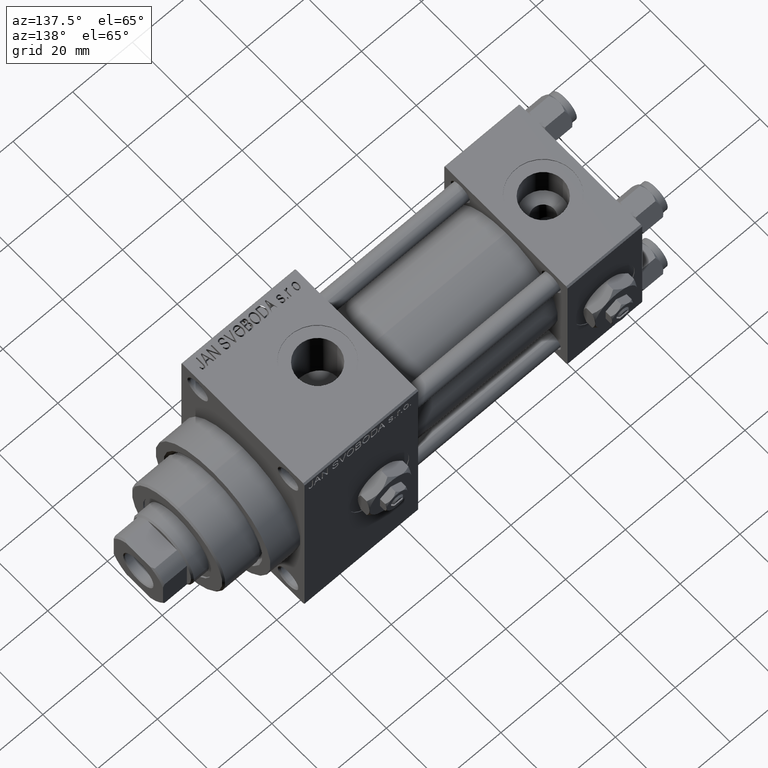
[diagram: clean part render]
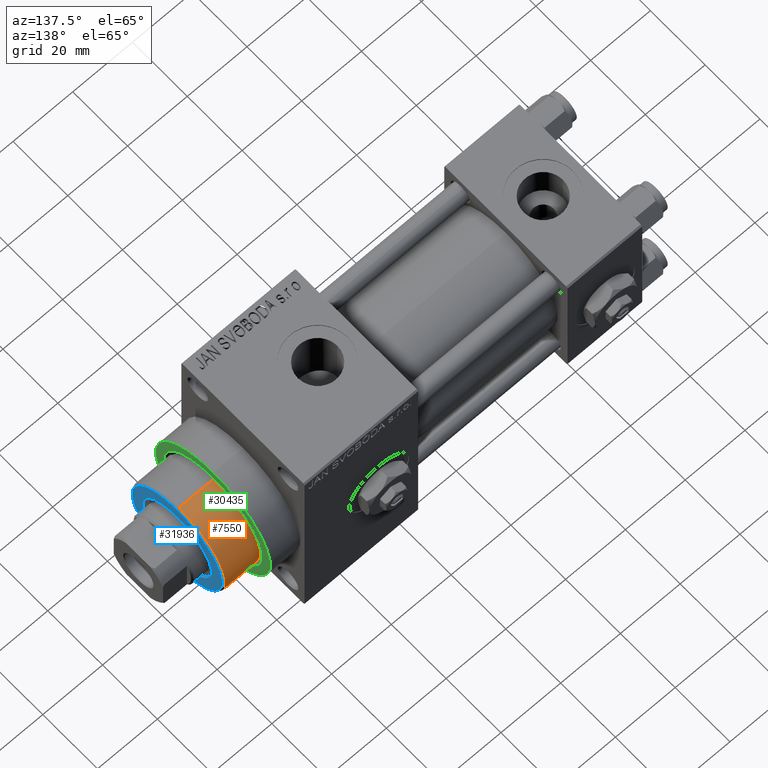
[diagram: same view with three faces highlighted in distinct colors, each labeled with its STEP entity id]
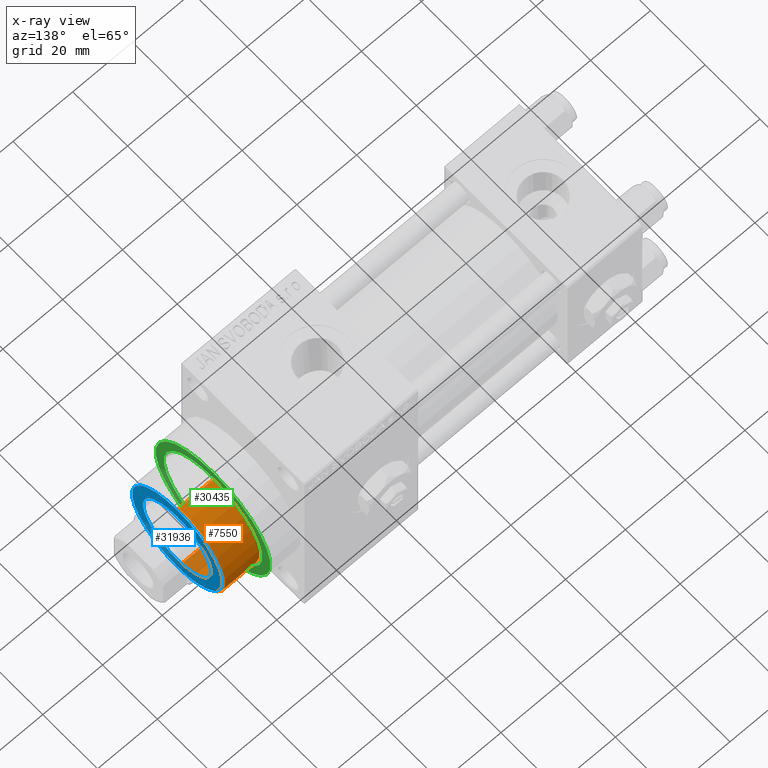
[diagram: x-ray of the same camera — body ghosted, the three highlighted faces saturated]
A machine part, auxiliary view with three faces highlighted in distinct colors.
The next image is the same camera in x-ray (body ghosted, the three faces saturated) — at least one of them is partly hidden behind the body in this view.
Their STEP definitions:

[orange] entity #7550 — the highlighted cylindrical surface (partial cylindrical patch) has radius 17 mm, axis along (-1, 0, 0).
#663 = EDGE_CURVE ( 'NONE', #28448, #48908, #46352, .T. ) ;
#2742 = DIRECTION ( 'NONE',  ( 0.000000000000000000, 0.000000000000000000, -1.000000000000000000 ) ) ;
#3461 = AXIS2_PLACEMENT_3D ( 'NONE', #21621, #2742, #17895 ) ;
#7550 = ADVANCED_FACE ( 'NONE', ( #32338 ), #27365, .T. ) ;
#8650 = VERTEX_POINT ( 'NONE', #42503 ) ;
#9403 = DIRECTION ( 'NONE',  ( 0.000000000000000000, 0.000000000000000000, 1.000000000000000000 ) ) ;
#11142 = CARTESIAN_POINT ( 'NONE',  ( 17.00000000000000000, 2.081899558550500280E-15, 43.25999999999999801 ) ) ;
#12469 = CARTESIAN_POINT ( 'NONE',  ( 0.000000000000000000, 0.000000000000000000, 55.26000000000000512 ) ) ;
#13242 = EDGE_CURVE ( 'NONE', #48908, #8650, #25614, .T. ) ;
#17079 = EDGE_CURVE ( 'NONE', #28448, #31183, #23180, .T. ) ;
#17895 = DIRECTION ( 'NONE',  ( 1.000000000000000000, 0.000000000000000000, 0.000000000000000000 ) ) ;
#19440 = ORIENTED_EDGE ( 'NONE', *, *, #663, .T. ) ;
#19943 = DIRECTION ( 'NONE',  ( -0.000000000000000000, -0.000000000000000000, -1.000000000000000000 ) ) ;
#20240 = AXIS2_PLACEMENT_3D ( 'NONE', #28275, #9403, #31263 ) ;
#21621 = CARTESIAN_POINT ( 'NONE',  ( 0.000000000000000000, 0.000000000000000000, 54.76000000000001222 ) ) ;
#23180 = LINE ( 'NONE', #38353, #32331 ) ;
#25614 = LINE ( 'NONE', #33331, #29219 ) ;
#27365 = CYLINDRICAL_SURFACE ( 'NONE', #48854, 17.00000000000000000 ) ;
#28275 = CARTESIAN_POINT ( 'NONE',  ( 0.000000000000000000, 0.000000000000000000, 43.25999999999999801 ) ) ;
#28448 = VERTEX_POINT ( 'NONE', #44845 ) ;
#29219 = VECTOR ( 'NONE', #40785, 1000.000000000000000 ) ;
#30479 = ORIENTED_EDGE ( 'NONE', *, *, #17079, .F. ) ;
#31183 = VERTEX_POINT ( 'NONE', #11142 ) ;
#31263 = DIRECTION ( 'NONE',  ( 1.000000000000000000, 0.000000000000000000, 0.000000000000000000 ) ) ;
#32203 = ORIENTED_EDGE ( 'NONE', *, *, #13242, .T. ) ;
#32331 = VECTOR ( 'NONE', #19943, 1000.000000000000000 ) ;
#32338 = FACE_OUTER_BOUND ( 'NONE', #47289, .T. ) ;
#33331 = CARTESIAN_POINT ( 'NONE',  ( -17.00000000000000000, 0.000000000000000000, 55.26000000000000512 ) ) ;
#38353 = CARTESIAN_POINT ( 'NONE',  ( 17.00000000000000000, 2.081899558550500280E-15, 55.26000000000000512 ) ) ;
#39559 = ORIENTED_EDGE ( 'NONE', *, *, #43476, .T. ) ;
#40785 = DIRECTION ( 'NONE',  ( -0.000000000000000000, -0.000000000000000000, -1.000000000000000000 ) ) ;
#41295 = CARTESIAN_POINT ( 'NONE',  ( -17.00000000000000000, 0.000000000000000000, 54.76000000000001222 ) ) ;
#41690 = CIRCLE ( 'NONE', #20240, 17.00000000000000000 ) ;
#42503 = CARTESIAN_POINT ( 'NONE',  ( -17.00000000000000000, 0.000000000000000000, 43.25999999999999801 ) ) ;
#43286 = DIRECTION ( 'NONE',  ( -0.000000000000000000, -0.000000000000000000, -1.000000000000000000 ) ) ;
#43476 = EDGE_CURVE ( 'NONE', #8650, #31183, #41690, .T. ) ;
#44845 = CARTESIAN_POINT ( 'NONE',  ( 17.00000000000000000, 2.081899558550500280E-15, 54.76000000000001222 ) ) ;
#46352 = CIRCLE ( 'NONE', #3461, 17.00000000000000000 ) ;
#46781 = DIRECTION ( 'NONE',  ( -1.000000000000000000, 0.000000000000000000, 0.000000000000000000 ) ) ;
#47289 = EDGE_LOOP ( 'NONE', ( #30479, #19440, #32203, #39559 ) ) ;
#48854 = AXIS2_PLACEMENT_3D ( 'NONE', #12469, #43286, #46781 ) ;
#48908 = VERTEX_POINT ( 'NONE', #41295 ) ;

[blue] entity #31936 — the highlighted planar face has unit normal (1, -0, -0).
#769 = DIRECTION ( 'NONE',  ( 1.000000000000000000, 0.000000000000000000, 0.000000000000000000 ) ) ;
#1311 = DIRECTION ( 'NONE',  ( 0.000000000000000000, 0.000000000000000000, 1.000000000000000000 ) ) ;
#3512 = DIRECTION ( 'NONE',  ( 0.000000000000000000, 0.000000000000000000, 1.000000000000000000 ) ) ;
#3771 = CARTESIAN_POINT ( 'NONE',  ( 0.000000000000000000, 0.000000000000000000, 55.26000000000000512 ) ) ;
#4296 = DIRECTION ( 'NONE',  ( 0.000000000000000000, 0.000000000000000000, 1.000000000000000000 ) ) ;
#4719 = CARTESIAN_POINT ( 'NONE',  ( -16.50000000000001421, 0.000000000000000000, 55.26000000000000512 ) ) ;
#5710 = AXIS2_PLACEMENT_3D ( 'NONE', #39625, #31664, #12776 ) ;
#6529 = CIRCLE ( 'NONE', #5710, 16.50000000000001421 ) ;
#8033 = CARTESIAN_POINT ( 'NONE',  ( 12.50000000000000000, 0.000000000000000000, 55.26000000000000512 ) ) ;
#9965 = EDGE_LOOP ( 'NONE', ( #15422, #11952 ) ) ;
#10692 = EDGE_CURVE ( 'NONE', #27276, #31927, #26734, .T. ) ;
#10980 = CARTESIAN_POINT ( 'NONE',  ( 0.000000000000000000, 0.000000000000000000, 55.26000000000000512 ) ) ;
#11952 = ORIENTED_EDGE ( 'NONE', *, *, #17080, .T. ) ;
#12050 = ORIENTED_EDGE ( 'NONE', *, *, #10692, .F. ) ;
#12522 = VERTEX_POINT ( 'NONE', #4719 ) ;
#12776 = DIRECTION ( 'NONE',  ( 1.000000000000000000, 0.000000000000000000, 0.000000000000000000 ) ) ;
#15159 = CARTESIAN_POINT ( 'NONE',  ( 16.50000000000001421, 2.051283388571817281E-15, 55.26000000000000512 ) ) ;
#15422 = ORIENTED_EDGE ( 'NONE', *, *, #34296, .T. ) ;
#15977 = FACE_OUTER_BOUND ( 'NONE', #9965, .T. ) ;
#16767 = CARTESIAN_POINT ( 'NONE',  ( -12.50000000000000000, 1.530808498934191521E-15, 55.26000000000000512 ) ) ;
#17080 = EDGE_CURVE ( 'NONE', #23663, #12522, #29135, .T. ) ;
#17281 = CIRCLE ( 'NONE', #36333, 12.50000000000000000 ) ;
#17343 = EDGE_LOOP ( 'NONE', ( #27436, #12050 ) ) ;
#19204 = FACE_BOUND ( 'NONE', #17343, .T. ) ;
#21511 = AXIS2_PLACEMENT_3D ( 'NONE', #38345, #4296, #30900 ) ;
#21775 = EDGE_CURVE ( 'NONE', #31927, #27276, #17281, .T. ) ;
#23173 = PLANE ( 'NONE',  #21511 ) ;
#23663 = VERTEX_POINT ( 'NONE', #15159 ) ;
#26613 = DIRECTION ( 'NONE',  ( 1.000000000000000000, 0.000000000000000000, 0.000000000000000000 ) ) ;
#26734 = CIRCLE ( 'NONE', #33092, 12.50000000000000000 ) ;
#27276 = VERTEX_POINT ( 'NONE', #16767 ) ;
#27436 = ORIENTED_EDGE ( 'NONE', *, *, #21775, .F. ) ;
#29135 = CIRCLE ( 'NONE', #38682, 16.50000000000001421 ) ;
#30900 = DIRECTION ( 'NONE',  ( 1.000000000000000000, 0.000000000000000000, -0.000000000000000000 ) ) ;
#31664 = DIRECTION ( 'NONE',  ( 0.000000000000000000, 0.000000000000000000, 1.000000000000000000 ) ) ;
#31927 = VERTEX_POINT ( 'NONE', #8033 ) ;
#31936 = ADVANCED_FACE ( 'NONE', ( #19204, #15977 ), #23173, .T. ) ;
#33092 = AXIS2_PLACEMENT_3D ( 'NONE', #10980, #3512, #26613 ) ;
#34088 = DIRECTION ( 'NONE',  ( 0.000000000000000000, 0.000000000000000000, 1.000000000000000000 ) ) ;
#34296 = EDGE_CURVE ( 'NONE', #12522, #23663, #6529, .T. ) ;
#35118 = CARTESIAN_POINT ( 'NONE',  ( 0.000000000000000000, 0.000000000000000000, 55.26000000000000512 ) ) ;
#36333 = AXIS2_PLACEMENT_3D ( 'NONE', #3771, #34088, #769 ) ;
#38345 = CARTESIAN_POINT ( 'NONE',  ( 0.000000000000000000, 0.000000000000000000, 55.26000000000000512 ) ) ;
#38682 = AXIS2_PLACEMENT_3D ( 'NONE', #35118, #1311, #46084 ) ;
#39625 = CARTESIAN_POINT ( 'NONE',  ( 0.000000000000000000, 0.000000000000000000, 55.26000000000000512 ) ) ;
#46084 = DIRECTION ( 'NONE',  ( 1.000000000000000000, 0.000000000000000000, 0.000000000000000000 ) ) ;

[green] entity #30435 — the highlighted planar face has unit normal (1, 0, 0).
#1489 = CARTESIAN_POINT ( 'NONE',  ( 123.0000000000000142, 2.204364238465238978E-15, 18.00000000000002842 ) ) ;
#3281 = PLANE ( 'NONE',  #37411 ) ;
#4887 = ORIENTED_EDGE ( 'NONE', *, *, #27348, .T. ) ;
#6105 = DIRECTION ( 'NONE',  ( 1.000000000000000000, 0.000000000000000000, 0.000000000000000000 ) ) ;
#6748 = DIRECTION ( 'NONE',  ( 0.000000000000000000, 0.000000000000000000, -1.000000000000000000 ) ) ;
#10211 = DIRECTION ( 'NONE',  ( 0.000000000000000000, 0.000000000000000000, -1.000000000000000000 ) ) ;
#11242 = EDGE_LOOP ( 'NONE', ( #4887, #32632 ) ) ;
#12831 = EDGE_CURVE ( 'NONE', #46806, #39853, #39522, .T. ) ;
#15271 = VERTEX_POINT ( 'NONE', #35868 ) ;
#15641 = EDGE_CURVE ( 'NONE', #30950, #15271, #19575, .T. ) ;
#16323 = CARTESIAN_POINT ( 'NONE',  ( 123.0000000000000142, 0.000000000000000000, 0.000000000000000000 ) ) ;
#16791 = FACE_BOUND ( 'NONE', #11242, .T. ) ;
#17039 = EDGE_CURVE ( 'NONE', #39853, #46806, #47437, .T. ) ;
#17285 = FACE_OUTER_BOUND ( 'NONE', #48329, .T. ) ;
#19575 = CIRCLE ( 'NONE', #34661, 18.00000000000002842 ) ;
#20755 = DIRECTION ( 'NONE',  ( 0.000000000000000000, 0.000000000000000000, -1.000000000000000000 ) ) ;
#21639 = CARTESIAN_POINT ( 'NONE',  ( 123.0000000000000142, 0.000000000000000000, 0.000000000000000000 ) ) ;
#22627 = CARTESIAN_POINT ( 'NONE',  ( 123.0000000000000142, 0.000000000000000000, 21.00000000000000000 ) ) ;
#25957 = AXIS2_PLACEMENT_3D ( 'NONE', #48581, #44850, #41108 ) ;
#27348 = EDGE_CURVE ( 'NONE', #15271, #30950, #39716, .T. ) ;
#29085 = CARTESIAN_POINT ( 'NONE',  ( 123.0000000000000142, 0.000000000000000000, 0.000000000000000000 ) ) ;
#29360 = DIRECTION ( 'NONE',  ( -1.000000000000000000, -0.000000000000000000, -0.000000000000000000 ) ) ;
#30435 = ADVANCED_FACE ( 'NONE', ( #16791, #17285 ), #3281, .T. ) ;
#30950 = VERTEX_POINT ( 'NONE', #1489 ) ;
#31495 = DIRECTION ( 'NONE',  ( 0.000000000000000000, 0.000000000000000000, -1.000000000000000000 ) ) ;
#31971 = ORIENTED_EDGE ( 'NONE', *, *, #12831, .T. ) ;
#32632 = ORIENTED_EDGE ( 'NONE', *, *, #15641, .T. ) ;
#34661 = AXIS2_PLACEMENT_3D ( 'NONE', #29085, #44270, #10211 ) ;
#35868 = CARTESIAN_POINT ( 'NONE',  ( 123.0000000000000142, 0.000000000000000000, -18.00000000000002842 ) ) ;
#36835 = ORIENTED_EDGE ( 'NONE', *, *, #17039, .T. ) ;
#37121 = AXIS2_PLACEMENT_3D ( 'NONE', #16323, #46186, #31495 ) ;
#37411 = AXIS2_PLACEMENT_3D ( 'NONE', #40157, #6105, #20755 ) ;
#39522 = CIRCLE ( 'NONE', #37121, 21.00000000000000000 ) ;
#39716 = CIRCLE ( 'NONE', #44466, 18.00000000000002842 ) ;
#39853 = VERTEX_POINT ( 'NONE', #41778 ) ;
#40157 = CARTESIAN_POINT ( 'NONE',  ( 123.0000000000000142, 0.000000000000000000, 0.000000000000000000 ) ) ;
#41108 = DIRECTION ( 'NONE',  ( 0.000000000000000000, 0.000000000000000000, -1.000000000000000000 ) ) ;
#41778 = CARTESIAN_POINT ( 'NONE',  ( 123.0000000000000142, 2.571758278209441661E-15, -21.00000000000000000 ) ) ;
#44270 = DIRECTION ( 'NONE',  ( -1.000000000000000000, -0.000000000000000000, -0.000000000000000000 ) ) ;
#44466 = AXIS2_PLACEMENT_3D ( 'NONE', #21639, #29360, #6748 ) ;
#44850 = DIRECTION ( 'NONE',  ( 1.000000000000000000, 0.000000000000000000, 0.000000000000000000 ) ) ;
#46186 = DIRECTION ( 'NONE',  ( 1.000000000000000000, 0.000000000000000000, 0.000000000000000000 ) ) ;
#46806 = VERTEX_POINT ( 'NONE', #22627 ) ;
#47437 = CIRCLE ( 'NONE', #25957, 21.00000000000000000 ) ;
#48329 = EDGE_LOOP ( 'NONE', ( #31971, #36835 ) ) ;
#48581 = CARTESIAN_POINT ( 'NONE',  ( 123.0000000000000142, 0.000000000000000000, 0.000000000000000000 ) ) ;